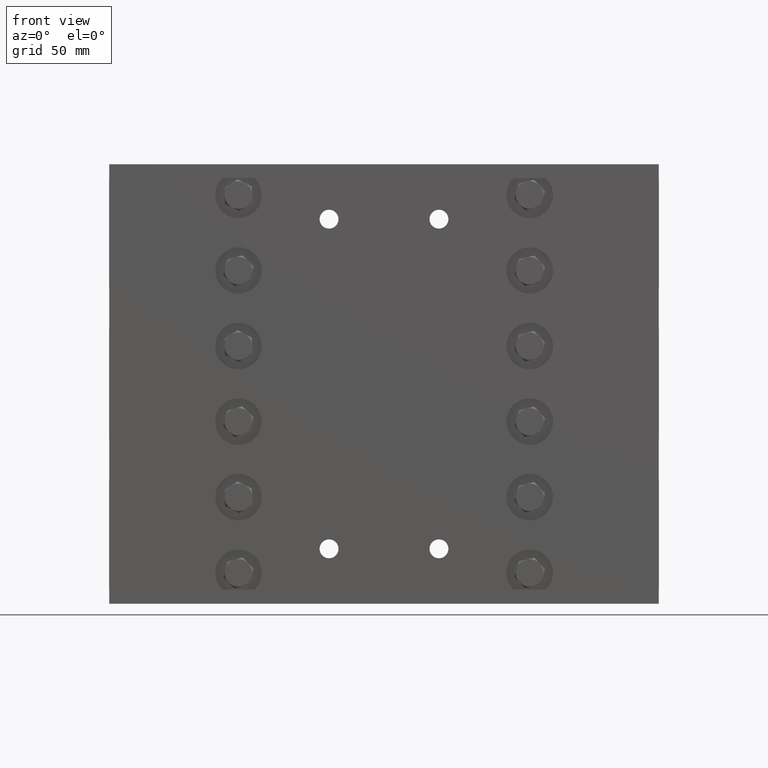
[diagram: clean part render]
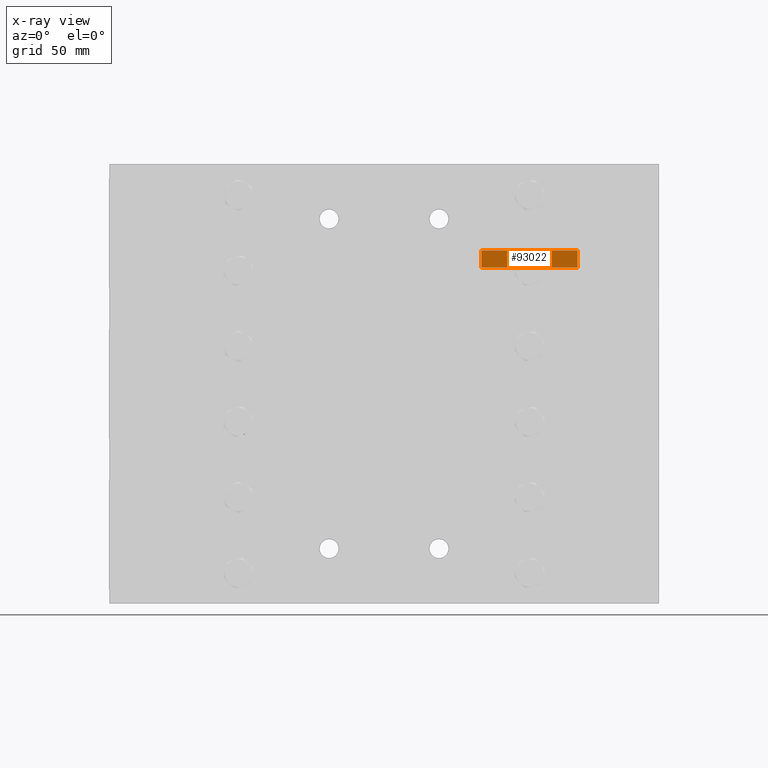
[diagram: x-ray — body ghosted, one internal face saturated and labeled with its STEP entity id]
A machine part, front view, then the same camera in x-ray: the body is ghosted and one INTERNAL B-rep face — a face not visible from any outside direction — is saturated and labeled: STEP entity #93022.
In plain terms, the highlighted planar face has unit normal (0, 1, 0).
Its self-contained STEP definition (entity closure, byte-faithful):
#5522 = LINE ( 'NONE', #21970, #5524 ) ;
#5524 = VECTOR ( 'NONE', #21966, 39.37007874015748100 ) ;
#5669 = LINE ( 'NONE', #18377, #5680 ) ;
#5674 = LINE ( 'NONE', #18366, #5676 ) ;
#5675 = LINE ( 'NONE', #18386, #5678 ) ;
#5676 = VECTOR ( 'NONE', #18368, 39.37007874015748100 ) ;
#5678 = VECTOR ( 'NONE', #18389, 39.37007874015748100 ) ;
#5680 = VECTOR ( 'NONE', #18391, 39.37007874015748100 ) ;
#11615 = CARTESIAN_POINT ( 'NONE',  ( 1.775000000000001200, 1.313000000000000200, 2.430000000000000200 ) ) ;
#11624 = CARTESIAN_POINT ( 'NONE',  ( 3.525000000000000800, 1.313000000000000200, 2.429999999999999700 ) ) ;
#14291 = VERTEX_POINT ( 'NONE', #11615 ) ;
#14300 = VERTEX_POINT ( 'NONE', #11624 ) ;
#18366 = CARTESIAN_POINT ( 'NONE',  ( 3.525000000000000800, 1.313000000000000200, 2.118499999999999600 ) ) ;
#18368 = DIRECTION ( 'NONE',  ( 8.326672684688674100E-017, -1.618821803392630500E-016, 1.000000000000000000 ) ) ;
#18377 = CARTESIAN_POINT ( 'NONE',  ( 1.775000000000001200, 1.313000000000000200, 2.118499999999999600 ) ) ;
#18386 = CARTESIAN_POINT ( 'NONE',  ( 1.775000000000001200, 1.313000000000000200, 2.430000000000000200 ) ) ;
#18389 = DIRECTION ( 'NONE',  ( 1.000000000000000000, -6.570830398308397600E-017, -6.938893903907228400E-017 ) ) ;
#18391 = DIRECTION ( 'NONE',  ( 8.326672684688674100E-017, -1.618821803392630500E-016, 1.000000000000000000 ) ) ;
#21966 = DIRECTION ( 'NONE',  ( 1.000000000000000000, -6.570830398308397600E-017, -6.938893903907228400E-017 ) ) ;
#21970 = CARTESIAN_POINT ( 'NONE',  ( 1.775000000000001200, 1.313000000000000200, 2.118499999999999600 ) ) ;
#36582 = VERTEX_POINT ( 'NONE', #97431 ) ;
#36617 = VERTEX_POINT ( 'NONE', #97496 ) ;
#41691 = EDGE_CURVE ( 'NONE', #36617, #36582, #5522, .T. ) ;
#41779 = EDGE_CURVE ( 'NONE', #36582, #14300, #5674, .T. ) ;
#41780 = EDGE_CURVE ( 'NONE', #14291, #14300, #5675, .T. ) ;
#41781 = EDGE_CURVE ( 'NONE', #36617, #14291, #5669, .T. ) ;
#61313 = ORIENTED_EDGE ( 'NONE', *, *, #41779, .T. ) ;
#61314 = ORIENTED_EDGE ( 'NONE', *, *, #41780, .F. ) ;
#61315 = ORIENTED_EDGE ( 'NONE', *, *, #41781, .F. ) ;
#61316 = ORIENTED_EDGE ( 'NONE', *, *, #41691, .T. ) ;
#80474 = EDGE_LOOP ( 'NONE', ( #61313, #61314, #61315, #61316 ) ) ;
#85575 = AXIS2_PLACEMENT_3D ( 'NONE', #96006, #96007, #96009 ) ;
#93022 = ADVANCED_FACE ( 'NONE', ( #94723 ), #95990, .F. ) ;
#94723 = FACE_OUTER_BOUND ( 'NONE', #80474, .T. ) ;
#95990 = PLANE ( 'NONE',  #85575 ) ;
#96006 = CARTESIAN_POINT ( 'NONE',  ( 1.775000000000001200, 1.313000000000000200, 2.118499999999999600 ) ) ;
#96007 = DIRECTION ( 'NONE',  ( 6.570830398308396400E-017, 1.000000000000000000, 1.618821803392630200E-016 ) ) ;
#96009 = DIRECTION ( 'NONE',  ( -8.326672684688674100E-017, 1.618821803392630200E-016, -1.000000000000000000 ) ) ;
#97431 = CARTESIAN_POINT ( 'NONE',  ( 3.525000000000000800, 1.313000000000000200, 2.118499999999999600 ) ) ;
#97496 = CARTESIAN_POINT ( 'NONE',  ( 1.775000000000001200, 1.313000000000000200, 2.118499999999999600 ) ) ;